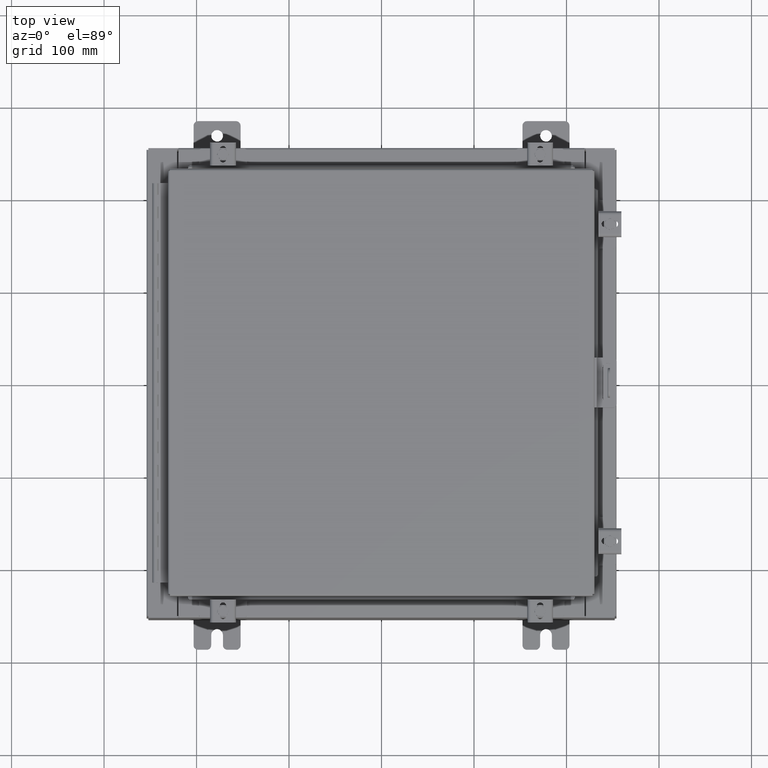
[diagram: clean part render]
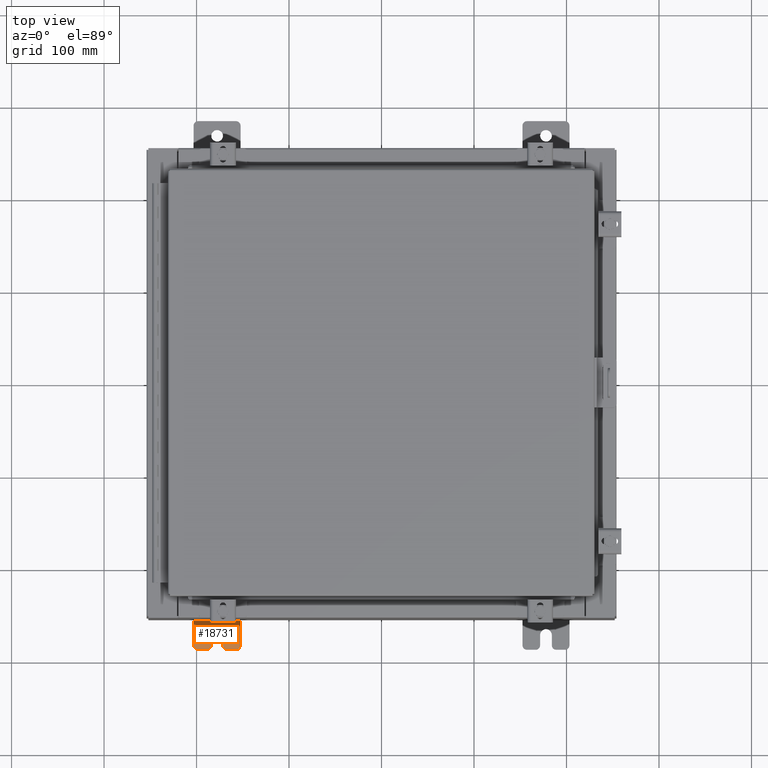
[diagram: same view with one face highlighted and labeled with its STEP entity id]
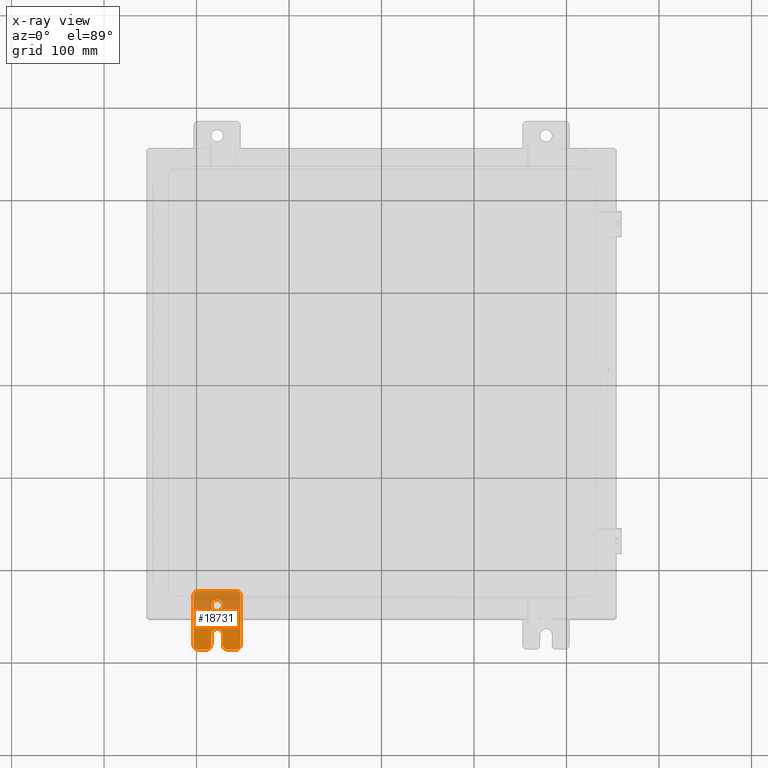
[diagram: x-ray of the same camera — body ghosted, the highlighted face saturated]
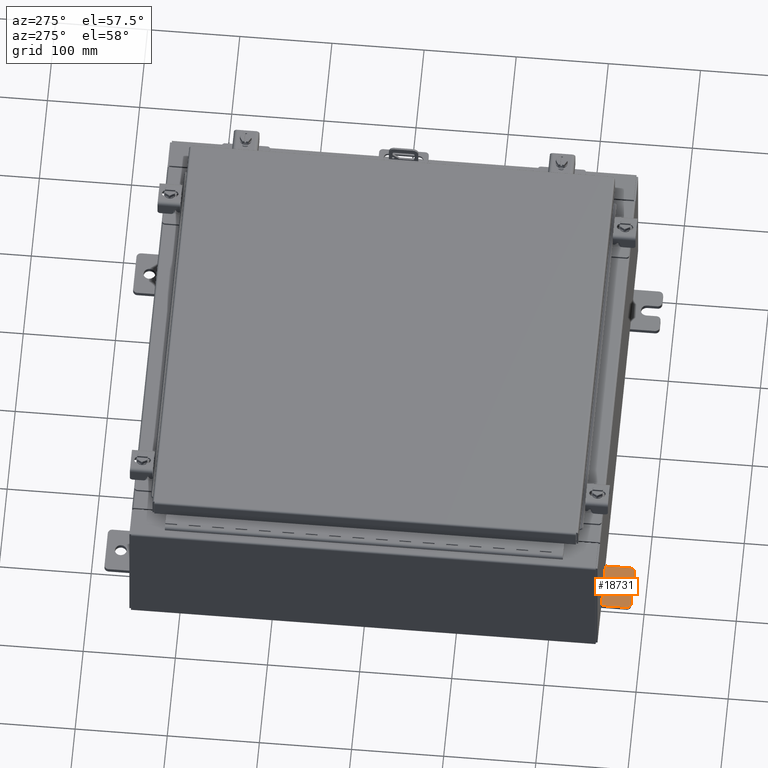
[diagram: same view with one face highlighted and labeled with its STEP entity id]
A machine part, top view. The second image highlights one B-rep face of the part: STEP entity #18731.
The next image is the same camera in x-ray: the body ghosted, the highlighted face saturated — about 54% of this face is hidden behind the body in this view.
A second angle (auxiliary view) of the same face is appended — the face is thin or edge-on in the first view.
In plain terms, the highlighted planar face has unit normal (0, 0, 1).
Its self-contained STEP definition (entity closure, byte-faithful):
#90 = DIRECTION ( 'NONE',  ( 0.0000000000000000000, 0.0000000000000000000, -1.000000000000000000 ) ) ;
#317 = CIRCLE ( 'NONE', #18394, 0.1900000000000011100 ) ;
#337 = AXIS2_PLACEMENT_3D ( 'NONE', #13318, #27137, #13431 ) ;
#491 = EDGE_CURVE ( 'NONE', #25051, #10550, #2555, .T. ) ;
#542 = DIRECTION ( 'NONE',  ( 0.0000000000000000000, -1.639108796198553600E-015, -1.000000000000000000 ) ) ;
#632 = CARTESIAN_POINT ( 'NONE',  ( 4.039428427013647300E-016, 0.6249999999999992200, -9.783840404509077400E-018 ) ) ;
#888 = CIRCLE ( 'NONE', #8964, 0.2499999999999999200 ) ;
#1110 = DIRECTION ( 'NONE',  ( 1.000000000000000000, 0.0000000000000000000, -0.0000000000000000000 ) ) ;
#1606 = DIRECTION ( 'NONE',  ( 0.0000000000000000000, 0.0000000000000000000, -1.000000000000000000 ) ) ;
#1880 = VECTOR ( 'NONE', #27274, 39.37007874015748100 ) ;
#2234 = EDGE_CURVE ( 'NONE', #26259, #3944, #18533, .T. ) ;
#2453 = VECTOR ( 'NONE', #20520, 39.37007874015748100 ) ;
#2555 = CIRCLE ( 'NONE', #24428, 0.1900000000000011100 ) ;
#2832 = CARTESIAN_POINT ( 'NONE',  ( 4.168508244714285900E-016, 0.6249999999999992200, 0.2499999999999999200 ) ) ;
#2907 = DIRECTION ( 'NONE',  ( -5.163192708025533800E-017, 0.0000000000000000000, -1.000000000000000000 ) ) ;
#2989 = VERTEX_POINT ( 'NONE', #14295 ) ;
#3021 = ORIENTED_EDGE ( 'NONE', *, *, #18515, .T. ) ;
#3103 = EDGE_LOOP ( 'NONE', ( #20839, #8653 ) ) ;
#3354 = CARTESIAN_POINT ( 'NONE',  ( 3.910348609313009100E-016, 0.6249999999999992200, -0.2499999999999999200 ) ) ;
#3427 = EDGE_CURVE ( 'NONE', #27512, #8470, #21918, .T. ) ;
#3482 = EDGE_CURVE ( 'NONE', #4962, #26259, #21199, .T. ) ;
#3944 = VERTEX_POINT ( 'NONE', #15236 ) ;
#4418 = ORIENTED_EDGE ( 'NONE', *, *, #14358, .T. ) ;
#4487 = CARTESIAN_POINT ( 'NONE',  ( 0.0000000000000000000, 1.249999999999997600, 0.9999999999999951200 ) ) ;
#4730 = AXIS2_PLACEMENT_3D ( 'NONE', #632, #16551, #2907 ) ;
#4789 = VERTEX_POINT ( 'NONE', #19634 ) ;
#4962 = VERTEX_POINT ( 'NONE', #8073 ) ;
#5306 = EDGE_CURVE ( 'NONE', #4789, #27512, #6483, .T. ) ;
#5548 = PLANE ( 'NONE',  #23071 ) ;
#5560 = CARTESIAN_POINT ( 'NONE',  ( 0.0000000000000000000, 1.059999999999996300, 0.8099999999999938400 ) ) ;
#5664 = DIRECTION ( 'NONE',  ( 0.0000000000000000000, 0.0000000000000000000, -1.000000000000000000 ) ) ;
#6182 = CARTESIAN_POINT ( 'NONE',  ( 0.0000000000000000000, -1.060000000000003400, -0.4400000000000005000 ) ) ;
#6483 = LINE ( 'NONE', #27968, #1880 ) ;
#6616 = VERTEX_POINT ( 'NONE', #8946 ) ;
#6940 = AXIS2_PLACEMENT_3D ( 'NONE', #10338, #26320, #12629 ) ;
#7009 = CARTESIAN_POINT ( 'NONE',  ( 0.0000000000000000000, -1.060000000000004100, -0.8100000000000050500 ) ) ;
#7386 = ORIENTED_EDGE ( 'NONE', *, *, #491, .T. ) ;
#7543 = CARTESIAN_POINT ( 'NONE',  ( 0.0000000000000000000, 1.249999999999997300, 0.8099999999999935000 ) ) ;
#7796 = VECTOR ( 'NONE', #11639, 39.37007874015748100 ) ;
#8073 = CARTESIAN_POINT ( 'NONE',  ( 0.0000000000000000000, 1.249999999999994700, -0.8100000000000092700 ) ) ;
#8229 = AXIS2_PLACEMENT_3D ( 'NONE', #5560, #8253, #5664 ) ;
#8253 = DIRECTION ( 'NONE',  ( 1.000000000000000000, 0.0000000000000000000, -0.0000000000000000000 ) ) ;
#8396 = VECTOR ( 'NONE', #25619, 39.37007874015748100 ) ;
#8470 = VERTEX_POINT ( 'NONE', #13654 ) ;
#8487 = EDGE_CURVE ( 'NONE', #3944, #22083, #14557, .T. ) ;
#8595 = EDGE_CURVE ( 'NONE', #10121, #25028, #17769, .T. ) ;
#8653 = ORIENTED_EDGE ( 'NONE', *, *, #15327, .F. ) ;
#8946 = CARTESIAN_POINT ( 'NONE',  ( 0.0000000000000000000, 1.059999999999993400, -1.000000000000010000 ) ) ;
#8964 = AXIS2_PLACEMENT_3D ( 'NONE', #10605, #26597, #12922 ) ;
#9336 = DIRECTION ( 'NONE',  ( 1.000000000000000000, 0.0000000000000000000, -0.0000000000000000000 ) ) ;
#9551 = CARTESIAN_POINT ( 'NONE',  ( 0.0000000000000000000, -1.250000000000002200, 0.9999999999999992200 ) ) ;
#9627 = DIRECTION ( 'NONE',  ( 0.0000000000000000000, 1.639108796198553600E-015, 1.000000000000000000 ) ) ;
#10121 = VERTEX_POINT ( 'NONE', #3354 ) ;
#10161 = CIRCLE ( 'NONE', #6940, 0.2499999999999999200 ) ;
#10231 = EDGE_CURVE ( 'NONE', #14292, #4789, #888, .T. ) ;
#10338 = CARTESIAN_POINT ( 'NONE',  ( 4.039428427013647300E-016, 0.6249999999999992200, -9.783840404509077400E-018 ) ) ;
#10550 = VERTEX_POINT ( 'NONE', #13987 ) ;
#10605 = CARTESIAN_POINT ( 'NONE',  ( 4.780733988912460100E-016, -0.6249999999999993300, 5.858939755051854500E-017 ) ) ;
#10826 = VECTOR ( 'NONE', #542, 39.37007874015748100 ) ;
#11321 = CARTESIAN_POINT ( 'NONE',  ( 0.0000000000000000000, -1.250000000000002200, 0.9999999999999992200 ) ) ;
#11639 = DIRECTION ( 'NONE',  ( 0.0000000000000000000, 1.000000000000000000, -1.639108796198558100E-015 ) ) ;
#11942 = CARTESIAN_POINT ( 'NONE',  ( 6.829619984160658000E-017, -1.250000000000003800, 0.2500000000000005000 ) ) ;
#11950 = CIRCLE ( 'NONE', #337, 0.1900000000000011400 ) ;
#12099 = ORIENTED_EDGE ( 'NONE', *, *, #10231, .T. ) ;
#12444 = CARTESIAN_POINT ( 'NONE',  ( 0.0000000000000000000, -1.250000000000002400, 0.8099999999999980500 ) ) ;
#12629 = DIRECTION ( 'NONE',  ( -5.163192708025533800E-017, 0.0000000000000000000, -1.000000000000000000 ) ) ;
#12767 = DIRECTION ( 'NONE',  ( 1.000000000000000000, 0.0000000000000000000, -0.0000000000000000000 ) ) ;
#12922 = DIRECTION ( 'NONE',  ( -6.523827964459551700E-016, -1.000000000000000000, 0.0000000000000000000 ) ) ;
#13205 = ORIENTED_EDGE ( 'NONE', *, *, #15584, .T. ) ;
#13318 = CARTESIAN_POINT ( 'NONE',  ( 0.0000000000000000000, -1.060000000000002100, 0.4400000000000016700 ) ) ;
#13431 = DIRECTION ( 'NONE',  ( 0.0000000000000000000, 0.0000000000000000000, -1.000000000000000000 ) ) ;
#13654 = CARTESIAN_POINT ( 'NONE',  ( 0.0000000000000000000, -1.250000000000004700, -0.4400000000000002200 ) ) ;
#13675 = DIRECTION ( 'NONE',  ( 1.000000000000000000, 0.0000000000000000000, -0.0000000000000000000 ) ) ;
#13856 = LINE ( 'NONE', #23011, #7796 ) ;
#13935 = ORIENTED_EDGE ( 'NONE', *, *, #15537, .T. ) ;
#13987 = CARTESIAN_POINT ( 'NONE',  ( 0.0000000000000000000, -1.060000000000004500, -1.000000000000006400 ) ) ;
#13997 = DIRECTION ( 'NONE',  ( 1.000000000000000000, 0.0000000000000000000, -0.0000000000000000000 ) ) ;
#14176 = ORIENTED_EDGE ( 'NONE', *, *, #22363, .T. ) ;
#14292 = VERTEX_POINT ( 'NONE', #22549 ) ;
#14295 = CARTESIAN_POINT ( 'NONE',  ( 1.928684683526972300E-016, -1.060000000000002100, 0.2500000000000005000 ) ) ;
#14358 = EDGE_CURVE ( 'NONE', #22083, #15282, #317, .T. ) ;
#14375 = CARTESIAN_POINT ( 'NONE',  ( 0.0000000000000000000, -1.250000000000005300, -0.8100000000000047200 ) ) ;
#14514 = CARTESIAN_POINT ( 'NONE',  ( 0.0000000000000000000, -1.250000000000003100, 0.4400000000000020000 ) ) ;
#14557 = LINE ( 'NONE', #4487, #2453 ) ;
#15175 = EDGE_CURVE ( 'NONE', #2989, #14292, #20519, .T. ) ;
#15236 = CARTESIAN_POINT ( 'NONE',  ( 0.0000000000000000000, 1.059999999999996500, 0.9999999999999953400 ) ) ;
#15282 = VERTEX_POINT ( 'NONE', #12444 ) ;
#15327 = EDGE_CURVE ( 'NONE', #25028, #10121, #10161, .T. ) ;
#15476 = LINE ( 'NONE', #9551, #10826 ) ;
#15537 = EDGE_CURVE ( 'NONE', #26318, #2989, #11950, .T. ) ;
#15584 = EDGE_CURVE ( 'NONE', #8470, #25051, #16604, .T. ) ;
#15868 = VECTOR ( 'NONE', #22689, 39.37007874015748100 ) ;
#16551 = DIRECTION ( 'NONE',  ( 1.000000000000000000, -0.0000000000000000000, -5.163192708025532000E-017 ) ) ;
#16604 = LINE ( 'NONE', #11321, #15868 ) ;
#17024 = CIRCLE ( 'NONE', #20536, 0.1900000000000011100 ) ;
#17041 = DIRECTION ( 'NONE',  ( -0.0000000000000000000, 0.0000000000000000000, -1.000000000000000000 ) ) ;
#17769 = CIRCLE ( 'NONE', #4730, 0.2499999999999999200 ) ;
#18193 = DIRECTION ( 'NONE',  ( 0.0000000000000000000, 0.0000000000000000000, -1.000000000000000000 ) ) ;
#18331 = ORIENTED_EDGE ( 'NONE', *, *, #5306, .T. ) ;
#18394 = AXIS2_PLACEMENT_3D ( 'NONE', #27384, #13675, #90 ) ;
#18515 = EDGE_CURVE ( 'NONE', #10550, #6616, #13856, .T. ) ;
#18533 = CIRCLE ( 'NONE', #8229, 0.1900000000000011100 ) ;
#18731 = ADVANCED_FACE ( 'NONE', ( #25634, #19554 ), #5548, .T. ) ;
#19554 = FACE_OUTER_BOUND ( 'NONE', #24853, .T. ) ;
#19634 = CARTESIAN_POINT ( 'NONE',  ( 4.780733988912460100E-016, -0.6249999999999993300, -0.2499999999999998600 ) ) ;
#19908 = ORIENTED_EDGE ( 'NONE', *, *, #28217, .T. ) ;
#20049 = CARTESIAN_POINT ( 'NONE',  ( 0.0000000000000000000, -1.060000000000001200, 0.9999999999999988900 ) ) ;
#20519 = LINE ( 'NONE', #11942, #8396 ) ;
#20520 = DIRECTION ( 'NONE',  ( 0.0000000000000000000, -1.000000000000000000, 1.639108796198558100E-015 ) ) ;
#20536 = AXIS2_PLACEMENT_3D ( 'NONE', #26454, #12767, #28730 ) ;
#20839 = ORIENTED_EDGE ( 'NONE', *, *, #8595, .F. ) ;
#21199 = LINE ( 'NONE', #24947, #26595 ) ;
#21328 = ORIENTED_EDGE ( 'NONE', *, *, #15175, .T. ) ;
#21342 = ORIENTED_EDGE ( 'NONE', *, *, #3427, .T. ) ;
#21840 = ORIENTED_EDGE ( 'NONE', *, *, #3482, .T. ) ;
#21918 = CIRCLE ( 'NONE', #27399, 0.1900000000000011100 ) ;
#22083 = VERTEX_POINT ( 'NONE', #20049 ) ;
#22363 = EDGE_CURVE ( 'NONE', #15282, #26318, #15476, .T. ) ;
#22549 = CARTESIAN_POINT ( 'NONE',  ( 0.0000000000000000000, -0.6249999999999992200, 0.2500000000000005000 ) ) ;
#22689 = DIRECTION ( 'NONE',  ( 0.0000000000000000000, -1.639108796198553600E-015, -1.000000000000000000 ) ) ;
#23011 = CARTESIAN_POINT ( 'NONE',  ( 0.0000000000000000000, -1.250000000000005600, -1.000000000000006200 ) ) ;
#23071 = AXIS2_PLACEMENT_3D ( 'NONE', #23809, #1110, #17041 ) ;
#23074 = ORIENTED_EDGE ( 'NONE', *, *, #2234, .T. ) ;
#23809 = CARTESIAN_POINT ( 'NONE',  ( 0.0000000000000000000, 0.0000000000000000000, 0.0000000000000000000 ) ) ;
#23879 = CARTESIAN_POINT ( 'NONE',  ( 1.928684683526964400E-016, -1.060000000000003400, -0.2499999999999994400 ) ) ;
#24428 = AXIS2_PLACEMENT_3D ( 'NONE', #7009, #13997, #18193 ) ;
#24853 = EDGE_LOOP ( 'NONE', ( #28109, #4418, #14176, #13935, #21328, #12099, #18331, #21342, #13205, #7386, #3021, #19908, #21840, #23074 ) ) ;
#24947 = CARTESIAN_POINT ( 'NONE',  ( 0.0000000000000000000, 1.249999999999994200, -1.000000000000010400 ) ) ;
#25028 = VERTEX_POINT ( 'NONE', #2832 ) ;
#25051 = VERTEX_POINT ( 'NONE', #14375 ) ;
#25619 = DIRECTION ( 'NONE',  ( 6.556435184794182400E-016, 1.000000000000000000, 0.0000000000000000000 ) ) ;
#25634 = FACE_BOUND ( 'NONE', #3103, .T. ) ;
#26259 = VERTEX_POINT ( 'NONE', #7543 ) ;
#26318 = VERTEX_POINT ( 'NONE', #14514 ) ;
#26320 = DIRECTION ( 'NONE',  ( 1.000000000000000000, -0.0000000000000000000, -5.163192708025532000E-017 ) ) ;
#26454 = CARTESIAN_POINT ( 'NONE',  ( 0.0000000000000000000, 1.059999999999993600, -0.8100000000000089400 ) ) ;
#26595 = VECTOR ( 'NONE', #9627, 39.37007874015748100 ) ;
#26597 = DIRECTION ( 'NONE',  ( -1.000000000000000000, 6.523827964459549700E-016, 5.163192708025532000E-017 ) ) ;
#27137 = DIRECTION ( 'NONE',  ( 1.000000000000000000, 0.0000000000000000000, -0.0000000000000000000 ) ) ;
#27274 = DIRECTION ( 'NONE',  ( -6.556435184794182400E-016, -1.000000000000000000, -1.639108796198545600E-016 ) ) ;
#27384 = CARTESIAN_POINT ( 'NONE',  ( 0.0000000000000000000, -1.060000000000001600, 0.8099999999999978300 ) ) ;
#27399 = AXIS2_PLACEMENT_3D ( 'NONE', #6182, #9336, #1606 ) ;
#27512 = VERTEX_POINT ( 'NONE', #23879 ) ;
#27968 = CARTESIAN_POINT ( 'NONE',  ( 4.780733988912460100E-016, -0.6249999999999993300, -0.2499999999999993900 ) ) ;
#28109 = ORIENTED_EDGE ( 'NONE', *, *, #8487, .T. ) ;
#28217 = EDGE_CURVE ( 'NONE', #6616, #4962, #17024, .T. ) ;
#28730 = DIRECTION ( 'NONE',  ( 0.0000000000000000000, 0.0000000000000000000, -1.000000000000000000 ) ) ;